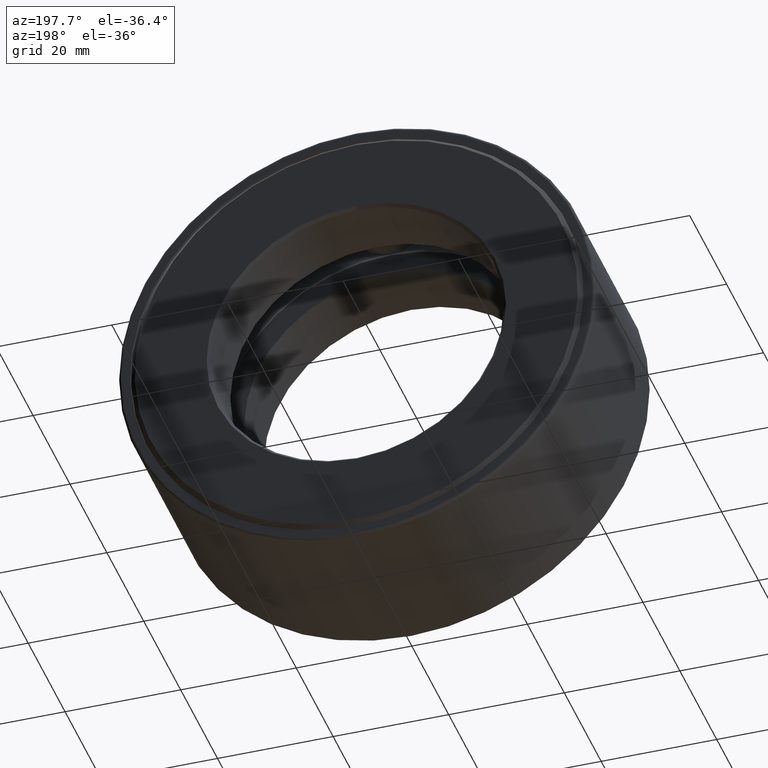
[diagram: clean part render]
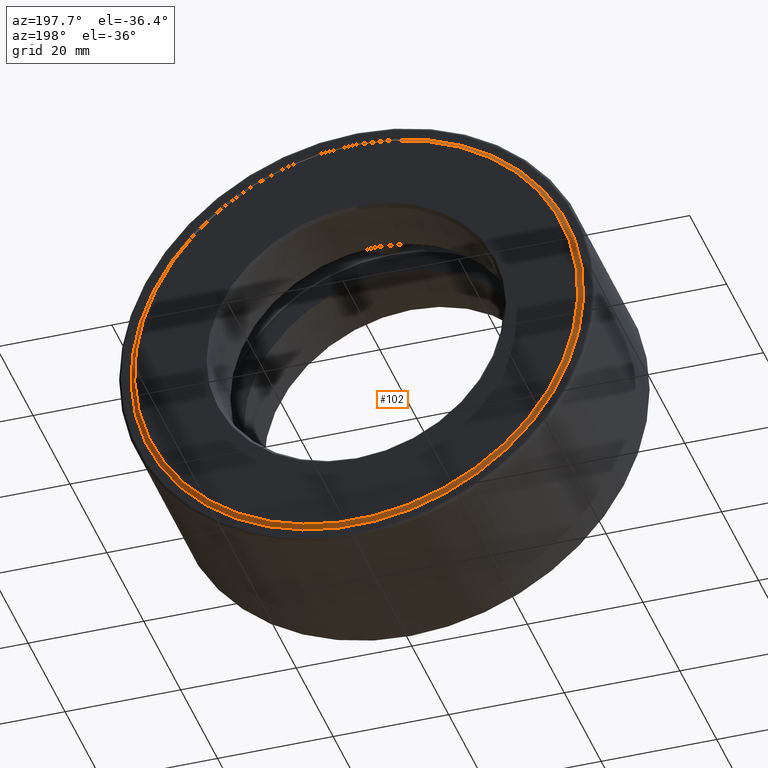
[diagram: same view with one face highlighted and labeled with its STEP entity id]
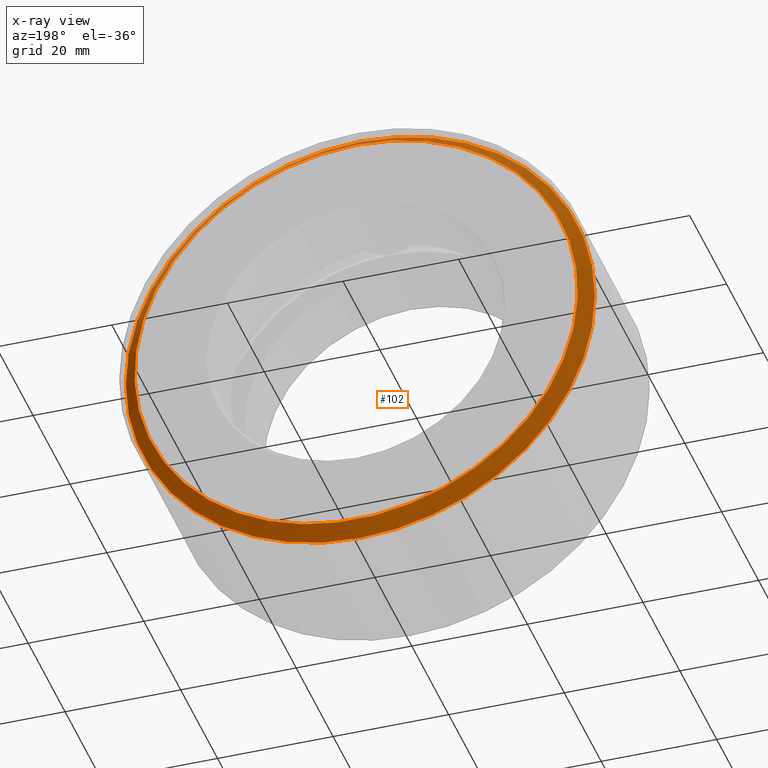
[diagram: x-ray of the same camera — body ghosted, the highlighted face saturated]
A machine part, auxiliary view. The second image highlights one B-rep face of the part: STEP entity #102.
The next image is the same camera in x-ray: the body ghosted, the highlighted face saturated — about 0% of this face is hidden behind the body in this view.
In plain terms, the highlighted conical surface has half-angle 45 deg.
Its self-contained STEP definition (entity closure, byte-faithful):
#5 = AXIS2_PLACEMENT_3D ( 'NONE', #344, #73, #529 ) ;
#41 = CONICAL_SURFACE ( 'NONE', #162, 1.509999999999999800, 0.7853981633974490600 ) ;
#70 = DIRECTION ( 'NONE',  ( 0.0000000000000000000, -1.000000000000000000, 0.0000000000000000000 ) ) ;
#73 = DIRECTION ( 'NONE',  ( -0.0000000000000000000, 1.000000000000000000, -0.0000000000000000000 ) ) ;
#75 = ORIENTED_EDGE ( 'NONE', *, *, #476, .T. ) ;
#81 = VERTEX_POINT ( 'NONE', #399 ) ;
#100 = ORIENTED_EDGE ( 'NONE', *, *, #304, .F. ) ;
#102 = ADVANCED_FACE ( 'NONE', ( #226, #320 ), #41, .T. ) ;
#111 = DIRECTION ( 'NONE',  ( -0.0000000000000000000, 1.000000000000000000, -0.0000000000000000000 ) ) ;
#136 = CIRCLE ( 'NONE', #253, 1.598000000000000100 ) ;
#160 = VERTEX_POINT ( 'NONE', #314 ) ;
#162 = AXIS2_PLACEMENT_3D ( 'NONE', #526, #70, #335 ) ;
#178 = EDGE_LOOP ( 'NONE', ( #75 ) ) ;
#226 = FACE_OUTER_BOUND ( 'NONE', #178, .T. ) ;
#253 = AXIS2_PLACEMENT_3D ( 'NONE', #294, #111, #479 ) ;
#294 = CARTESIAN_POINT ( 'NONE',  ( 0.0000000000000000000, 1.099499999999999900, 0.0000000000000000000 ) ) ;
#304 = EDGE_CURVE ( 'NONE', #160, #160, #571, .T. ) ;
#314 = CARTESIAN_POINT ( 'NONE',  ( 0.0000000000000000000, 1.187500000000000000, 1.509999999999999800 ) ) ;
#320 = FACE_BOUND ( 'NONE', #448, .T. ) ;
#335 = DIRECTION ( 'NONE',  ( 0.0000000000000000000, 0.0000000000000000000, -1.000000000000000000 ) ) ;
#344 = CARTESIAN_POINT ( 'NONE',  ( 0.0000000000000000000, 1.187500000000000000, 0.0000000000000000000 ) ) ;
#399 = CARTESIAN_POINT ( 'NONE',  ( 0.0000000000000000000, 1.099499999999999900, 1.598000000000000100 ) ) ;
#448 = EDGE_LOOP ( 'NONE', ( #100 ) ) ;
#476 = EDGE_CURVE ( 'NONE', #81, #81, #136, .T. ) ;
#479 = DIRECTION ( 'NONE',  ( 0.0000000000000000000, 0.0000000000000000000, 1.000000000000000000 ) ) ;
#526 = CARTESIAN_POINT ( 'NONE',  ( 0.0000000000000000000, 1.187500000000000000, 0.0000000000000000000 ) ) ;
#529 = DIRECTION ( 'NONE',  ( 0.0000000000000000000, 0.0000000000000000000, 1.000000000000000000 ) ) ;
#571 = CIRCLE ( 'NONE', #5, 1.509999999999999800 ) ;